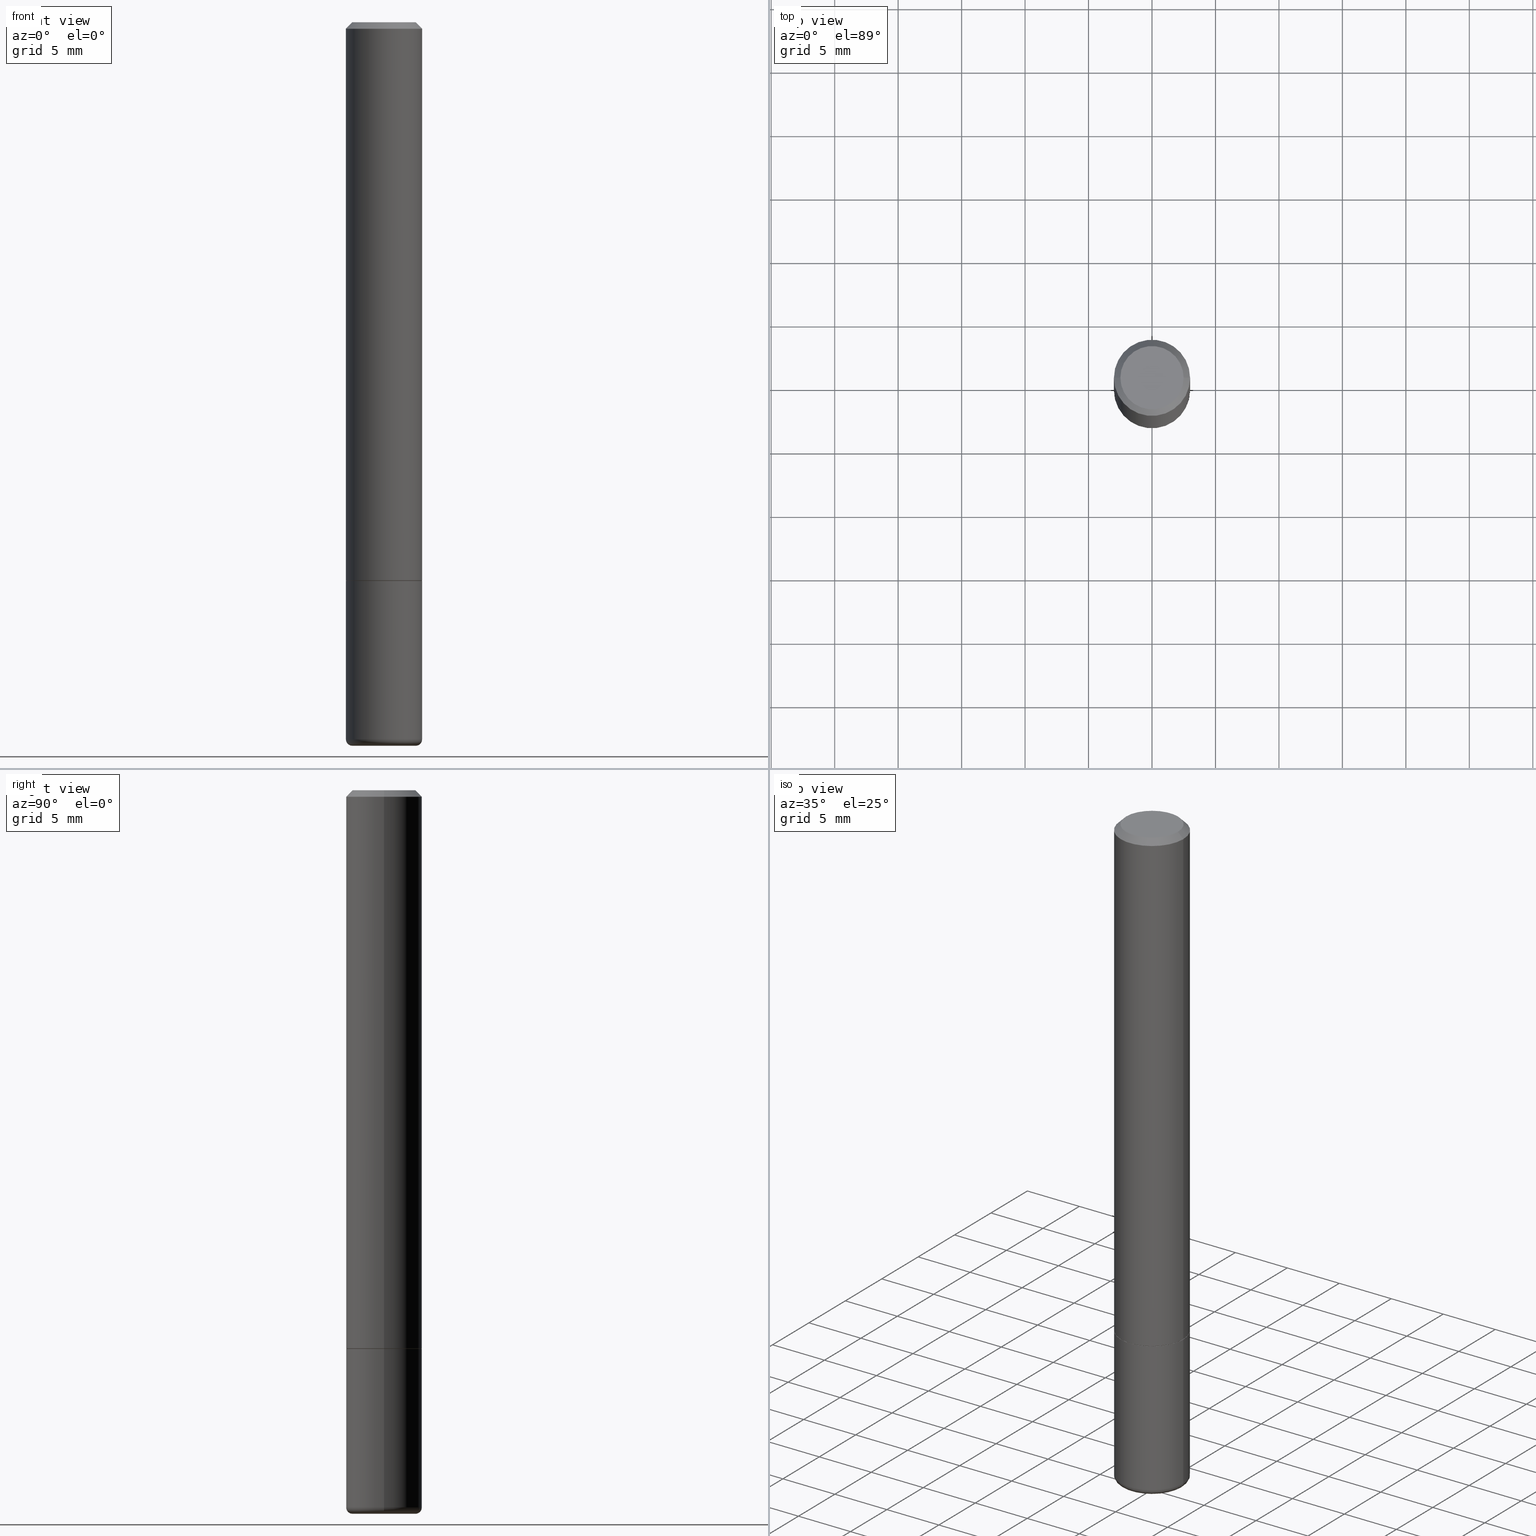
[diagram: canonical four-view strip — front | top / right | iso, engineering-drawing reading convention]
A machine part, canonical four-view strip (front | top / right | iso — engineering-drawing reading convention). The complete STEP part file that produces these views, byte-faithful:
ISO-10303-21;
HEADER;
FILE_DESCRIPTION (( 'STEP AP203' ),
    '1' );
FILE_NAME ('47002.STEP',
    '2024-03-05T10:00:59',
    ( '' ),
    ( '' ),
    'SwSTEP 2.0',
    'SolidWorks 2023',
    '' );
FILE_SCHEMA (( 'CONFIG_CONTROL_DESIGN' ));
ENDSEC;

DATA;
#1 = CARTESIAN_POINT ( 'NONE',  ( -0.1180999999999999411, -6.927300119190015324E-15, -2.224399999999999711 ) ) ;
#2 = EDGE_CURVE ( 'NONE', #64, #383, #325, .T. ) ;
#3 = PERSON_AND_ORGANIZATION ( #297, #409 ) ;
#4 = DIRECTION ( 'NONE',  ( -2.445468806185136597E-29, 3.491481338843145583E-15, 1.000000000000000000 ) ) ;
#5 = AXIS2_PLACEMENT_3D ( 'NONE', #230, #4, #72 ) ;
#6 = ADVANCED_FACE ( 'NONE', ( #299 ), #101, .T. ) ;
#7 = DIRECTION ( 'NONE',  ( -2.445468806185136597E-29, 3.491481338843145583E-15, 1.000000000000000000 ) ) ;
#8 = AXIS2_PLACEMENT_3D ( 'NONE', #53, #255, #158 ) ;
#9 = AXIS2_PLACEMENT_3D ( 'NONE', #137, #69, #324 ) ;
#10 = LINE ( 'NONE', #180, #96 ) ;
#11 = EDGE_CURVE ( 'NONE', #383, #64, #248, .T. ) ;
#12 = ORIENTED_EDGE ( 'NONE', *, *, #195, .T. ) ;
#13 = ORIENTED_EDGE ( 'NONE', *, *, #296, .F. ) ;
#14 = ORIENTED_EDGE ( 'NONE', *, *, #147, .F. ) ;
#15 = CONICAL_SURFACE ( 'NONE', #398, 0.1181000000000000383, 0.7853981633974461696 ) ;
#16 = ORIENTED_EDGE ( 'NONE', *, *, #373, .F. ) ;
#17 = VERTEX_POINT ( 'NONE', #350 ) ;
#18 = ORIENTED_EDGE ( 'NONE', *, *, #2, .T. ) ;
#19 = DATE_AND_TIME ( #417, #304 ) ;
#20 = CARTESIAN_POINT ( 'NONE',  ( 5.439700812478218014E-29, -7.766451090122692732E-15, -2.224399999999999711 ) ) ;
#21 = PRODUCT ( '47002', '47002', '', ( #138 ) ) ;
#22 = CARTESIAN_POINT ( 'NONE',  ( 9.838418477912259158E-29, -1.605009611337359141E-15, -2.244099999999999540 ) ) ;
#23 = PERSON_AND_ORGANIZATION ( #297, #409 ) ;
#24 = CIRCLE ( 'NONE', #330, 0.1181000000000002048 ) ;
#25 = DIRECTION ( 'NONE',  ( 1.000000000000000000, -6.982962677686266711E-15, 4.876176775795935793E-29 ) ) ;
#26 = CARTESIAN_POINT ( 'NONE',  ( 0.1170999999999999958, -6.865998052835041749E-15, -1.732299999999999729 ) ) ;
#27 = EDGE_CURVE ( 'NONE', #378, #153, #32, .T. ) ;
#28 = DIRECTION ( 'NONE',  ( -2.438088387897960049E-29, 3.491481338843145188E-15, 1.000000000000000000 ) ) ;
#29 = DIRECTION ( 'NONE',  ( -2.445468806185136597E-29, 3.491481338843145583E-15, 1.000000000000000000 ) ) ;
#30 = CYLINDRICAL_SURFACE ( 'NONE', #59, 0.1181000000000001215 ) ;
#31 = CARTESIAN_POINT ( 'NONE',  ( -0.1181000000000001215, 8.391509709326791832E-16, -5.809262341591049389E-30 ) ) ;
#32 = CIRCLE ( 'NONE', #8, 0.1180999999999999966 ) ;
#33 = CIRCLE ( 'NONE', #303, 0.1180999999999999966 ) ;
#34 = CARTESIAN_POINT ( 'NONE',  ( 5.487876547960064752E-29, -7.835233272497900762E-15, -2.244099999999999540 ) ) ;
#35 = PERSON_AND_ORGANIZATION_ROLE ( 'design_owner' ) ;
#36 = AXIS2_PLACEMENT_3D ( 'NONE', #262, #390, #228 ) ;
#37 = APPROVAL_PERSON_ORGANIZATION ( #246, #302, #58 ) ;
#38 = CC_DESIGN_PERSON_AND_ORGANIZATION_ASSIGNMENT ( #165, #122, ( #336 ) ) ;
#39 = DIRECTION ( 'NONE',  ( 2.438088387897960049E-29, -3.491481338843145188E-15, -1.000000000000000000 ) ) ;
#40 = EDGE_CURVE ( 'NONE', #239, #210, #200, .T. ) ;
#41 = AXIS2_PLACEMENT_3D ( 'NONE', #387, #189, #357 ) ;
#42 = CONICAL_SURFACE ( 'NONE', #74, 0.1170999999999999958, 0.7853981633976532262 ) ;
#43 = AXIS2_PLACEMENT_3D ( 'NONE', #162, #381, #221 ) ;
#44 = EDGE_LOOP ( 'NONE', ( #300, #216, #271, #181 ) ) ;
#45 = ORIENTED_EDGE ( 'NONE', *, *, #342, .F. ) ;
#46 = EDGE_LOOP ( 'NONE', ( #124, #14 ) ) ;
#47 = ADVANCED_FACE ( 'NONE', ( #199 ), #318, .T. ) ;
#48 = AXIS2_PLACEMENT_3D ( 'NONE', #155, #277, #404 ) ;
#49 = AXIS2_PLACEMENT_3D ( 'NONE', #284, #418, #25 ) ;
#50 = CARTESIAN_POINT ( 'NONE',  ( 4.233840144148326789E-29, -6.044801641939137282E-15, -1.731299999999999839 ) ) ;
#51 = VERTEX_POINT ( 'NONE', #98 ) ;
#52 = PLANE ( 'NONE',  #85 ) ;
#53 = CARTESIAN_POINT ( 'NONE',  ( 5.439700812478218014E-29, -7.766451090122692732E-15, -2.224399999999999711 ) ) ;
#54 = ORIENTED_EDGE ( 'NONE', *, *, #207, .T. ) ;
#55 = CARTESIAN_POINT ( 'NONE',  ( 0.1181000000000001215, -8.246878922347489529E-16, 5.758764772215006046E-30 ) ) ;
#56 = ADVANCED_FACE ( 'NONE', ( #252 ), #42, .T. ) ;
#57 = CARTESIAN_POINT ( 'NONE',  ( 4.890937612370288923E-31, -6.982962677686312563E-17, -0.02000000000000006287 ) ) ;
#58 = APPROVAL_ROLE ( '' ) ;
#59 = AXIS2_PLACEMENT_3D ( 'NONE', #166, #222, #285 ) ;
#60 = CARTESIAN_POINT ( 'NONE',  ( -0.09840000000000000135, -7.031679669849990177E-15, -2.244099999999999540 ) ) ;
#61 = LOCAL_TIME ( 5, 0, 59.00000000000000000, #99 ) ;
#62 = PRODUCT_RELATED_PRODUCT_CATEGORY ( 'detail', '', ( #21 ) ) ;
#63 = CARTESIAN_POINT ( 'NONE',  ( 4.890937612370288923E-31, -6.982962677686312563E-17, -0.02000000000000006287 ) ) ;
#64 = VERTEX_POINT ( 'NONE', #347 ) ;
#65 = DIRECTION ( 'NONE',  ( 1.000000000000000000, -6.982962677686265133E-15, 0.000000000000000000 ) ) ;
#66 = DIRECTION ( 'NONE',  ( -1.000000000000000000, 6.982962677686266711E-15, 0.000000000000000000 ) ) ;
#67 = EDGE_CURVE ( 'NONE', #239, #208, #92, .T. ) ;
#68 = FACE_OUTER_BOUND ( 'NONE', #341, .T. ) ;
#69 = DIRECTION ( 'NONE',  ( -2.445468806185136597E-29, 3.491481338843145583E-15, 1.000000000000000000 ) ) ;
#70 = AXIS2_PLACEMENT_3D ( 'NONE', #123, #348, #376 ) ;
#71 = PRODUCT_DEFINITION_FORMATION_WITH_SPECIFIED_SOURCE ( 'ANY', '', #21, .NOT_KNOWN. ) ;
#72 = DIRECTION ( 'NONE',  ( 1.000000000000000000, -6.982962677686270655E-15, 4.883557194083114583E-29 ) ) ;
#73 = ADVANCED_FACE ( 'NONE', ( #163 ), #171, .T. ) ;
#74 = AXIS2_PLACEMENT_3D ( 'NONE', #130, #410, #380 ) ;
#75 = CC_DESIGN_APPROVAL ( #302, ( #71 ) ) ;
#76 = MANIFOLD_SOLID_BREP ( 'Body-Move/Copy2[2]', #149 ) ;
#77 = EDGE_LOOP ( 'NONE', ( #80, #367, #338, #146 ) ) ;
#78 = CIRCLE ( 'NONE', #364, 0.1170999999999999958 ) ;
#79 = MANIFOLD_SOLID_BREP ( 'Body-Move/Copy2[1]', #234 ) ;
#80 = ORIENTED_EDGE ( 'NONE', *, *, #322, .T. ) ;
#81 = CARTESIAN_POINT ( 'NONE',  ( 0.09840000000000000135, -8.453574617607021781E-15, -2.224399999999999711 ) ) ;
#82 = EDGE_CURVE ( 'NONE', #17, #275, #259, .T. ) ;
#83 = ORIENTED_EDGE ( 'NONE', *, *, #229, .T. ) ;
#84 = ORIENTED_EDGE ( 'NONE', *, *, #354, .F. ) ;
#85 = AXIS2_PLACEMENT_3D ( 'NONE', #389, #28, #323 ) ;
#86 = PERSON_AND_ORGANIZATION_ROLE ( 'classification_officer' ) ;
#87 = CARTESIAN_POINT ( 'NONE',  ( 0.09809999999999970133, -7.765346469475326737E-16, 3.542865366783392114E-16 ) ) ;
#88 = ORIENTED_EDGE ( 'NONE', *, *, #27, .T. ) ;
#89 = EDGE_LOOP ( 'NONE', ( #84, #308, #278, #241 ) ) ;
#90 = ADVANCED_FACE ( 'NONE', ( #382 ), #15, .T. ) ;
#91 = DIRECTION ( 'NONE',  ( 1.000000000000000000, -6.982962677686266711E-15, 4.884890577880263287E-29 ) ) ;
#92 = LINE ( 'NONE', #220, #126 ) ;
#93 = APPROVAL ( #250, 'UNSPECIFIED' ) ;
#94 = DIRECTION ( 'NONE',  ( -2.445468806185136597E-29, 3.491481338843145583E-15, 1.000000000000000000 ) ) ;
#95 = DIRECTION ( 'NONE',  ( 2.445468806185136597E-29, -3.491481338843145583E-15, -1.000000000000000000 ) ) ;
#96 = VECTOR ( 'NONE', #395, 39.37007874015748143 ) ;
#97 = DIRECTION ( 'NONE',  ( -2.445468806185136877E-29, 3.491481338843145188E-15, 1.000000000000000000 ) ) ;
#98 = CARTESIAN_POINT ( 'NONE',  ( 0.09840000000000000135, -8.522356799982231388E-15, -2.244099999999999540 ) ) ;
#99 = COORDINATED_UNIVERSAL_TIME_OFFSET ( 5, 0, .BEHIND. ) ;
#100 =( NAMED_UNIT ( * ) PLANE_ANGLE_UNIT ( ) SI_UNIT ( $, .RADIAN. ) );
#101 = PLANE ( 'NONE',  #142 ) ;
#102 = DIRECTION ( 'NONE',  ( 1.000000000000000000, -6.982962677686266711E-15, 4.876176775795936353E-29 ) ) ;
#103 = SHAPE_DEFINITION_REPRESENTATION ( #186, #359 ) ;
#104 = DIRECTION ( 'NONE',  ( 0.000000000000000000, 0.000000000000000000, 1.000000000000000000 ) ) ;
#105 = UNCERTAINTY_MEASURE_WITH_UNIT (LENGTH_MEASURE( 1.000000000000000082E-05 ), #257, 'distance_accuracy_value', 'NONE');
#106 = AXIS2_PLACEMENT_3D ( 'NONE', #81, #178, #148 ) ;
#107 = EDGE_CURVE ( 'NONE', #210, #344, #416, .T. ) ;
#108 = PLANE ( 'NONE',  #110 ) ;
#109 = FACE_OUTER_BOUND ( 'NONE', #134, .T. ) ;
#110 = AXIS2_PLACEMENT_3D ( 'NONE', #295, #39, #203 ) ;
#111 = ADVANCED_FACE ( 'NONE', ( #321 ), #30, .T. ) ;
#112 = LINE ( 'NONE', #211, #135 ) ;
#113 = ORIENTED_EDGE ( 'NONE', *, *, #329, .F. ) ;
#114 = DIRECTION ( 'NONE',  ( -2.445468806185136597E-29, 3.491481338843145583E-15, 1.000000000000000000 ) ) ;
#115 = ORIENTED_EDGE ( 'NONE', *, *, #393, .T. ) ;
#116 = CIRCLE ( 'NONE', #349, 0.09840000000000000135 ) ;
#117 = LOCAL_TIME ( 5, 0, 59.00000000000000000, #156 ) ;
#118 = ADVANCED_FACE ( 'NONE', ( #289 ), #223, .T. ) ;
#119 = ORIENTED_EDGE ( 'NONE', *, *, #107, .F. ) ;
#120 = CARTESIAN_POINT ( 'NONE',  ( -0.1181000000000002048, -2.218164663425318543E-15, -1.731299999999999839 ) ) ;
#121 = EDGE_LOOP ( 'NONE', ( #401, #345, #399, #18 ) ) ;
#122 = PERSON_AND_ORGANIZATION_ROLE ( 'creator' ) ;
#123 = CARTESIAN_POINT ( 'NONE',  ( -0.09840000000000000135, -7.067277038134754633E-15, -2.224399999999999711 ) ) ;
#124 = ORIENTED_EDGE ( 'NONE', *, *, #322, .F. ) ;
#125 = EDGE_CURVE ( 'NONE', #208, #344, #151, .T. ) ;
#126 = VECTOR ( 'NONE', #193, 39.37007874015748854 ) ;
#127 = FACE_OUTER_BOUND ( 'NONE', #145, .T. ) ;
#128 = CARTESIAN_POINT ( 'NONE',  ( 0.000000000000000000, 0.000000000000000000, 0.000000000000000000 ) ) ;
#129 = DIRECTION ( 'NONE',  ( -2.445468806185136877E-29, 3.491481338843145188E-15, 1.000000000000000000 ) ) ;
#130 = CARTESIAN_POINT ( 'NONE',  ( 4.236285612954511832E-29, -6.048293123277980289E-15, -1.732299999999999729 ) ) ;
#131 = ORIENTED_EDGE ( 'NONE', *, *, #283, .F. ) ;
#132 =( LENGTH_UNIT ( ) NAMED_UNIT ( * ) SI_UNIT ( $, .METRE. ) );
#133 = DIRECTION ( 'NONE',  ( 2.438088387897960049E-29, -3.491481338843145188E-15, -1.000000000000000000 ) ) ;
#134 = EDGE_LOOP ( 'NONE', ( #88, #175, #217, #16 ) ) ;
#135 = VECTOR ( 'NONE', #339, 39.37007874015748143 ) ;
#136 = CC_DESIGN_PERSON_AND_ORGANIZATION_ASSIGNMENT ( #23, #86, ( #183 ) ) ;
#137 = CARTESIAN_POINT ( 'NONE',  ( 4.233840144148326789E-29, -6.044801641939137282E-15, -1.731299999999999839 ) ) ;
#138 = MECHANICAL_CONTEXT ( 'NONE', #144, 'mechanical' ) ;
#139 = FACE_OUTER_BOUND ( 'NONE', #397, .T. ) ;
#140 = APPROVAL_STATUS ( 'not_yet_approved' ) ;
#141 = VECTOR ( 'NONE', #310, 39.37007874015748143 ) ;
#142 = AXIS2_PLACEMENT_3D ( 'NONE', #22, #133, #311 ) ;
#143 = VECTOR ( 'NONE', #286, 39.37007874015748143 ) ;
#144 = APPLICATION_CONTEXT ( 'configuration controlled 3d designs of mechanical parts and assemblies' ) ;
#145 = EDGE_LOOP ( 'NONE', ( #249, #187 ) ) ;
#146 = ORIENTED_EDGE ( 'NONE', *, *, #207, .F. ) ;
#147 = EDGE_CURVE ( 'NONE', #405, #51, #116, .T. ) ;
#148 = DIRECTION ( 'NONE',  ( 1.000000000000000000, -6.982962677686266711E-15, 0.000000000000000000 ) ) ;
#149 = CLOSED_SHELL ( 'NONE', ( #56, #111, #73, #90, #263, #274, #332, #400 ) ) ;
#150 = ORIENTED_EDGE ( 'NONE', *, *, #67, .F. ) ;
#151 = CIRCLE ( 'NONE', #9, 0.1181000000000002048 ) ;
#152 = CC_DESIGN_APPROVAL ( #267, ( #336 ) ) ;
#153 = VERTEX_POINT ( 'NONE', #1 ) ;
#154 = PERSON_AND_ORGANIZATION_ROLE ( 'creator' ) ;
#155 = CARTESIAN_POINT ( 'NONE',  ( 4.890937612370288923E-31, -6.982962677686312563E-17, -0.02000000000000006287 ) ) ;
#156 = COORDINATED_UNIVERSAL_TIME_OFFSET ( 5, 0, .BEHIND. ) ;
#157 = CYLINDRICAL_SURFACE ( 'NONE', #49, 0.1181000000000001215 ) ;
#158 = DIRECTION ( 'NONE',  ( 1.000000000000000000, -6.982962677686265133E-15, 0.000000000000000000 ) ) ;
#159 = CC_DESIGN_SECURITY_CLASSIFICATION ( #183, ( #71 ) ) ;
#160 = DIRECTION ( 'NONE',  ( -2.445468806185136597E-29, 3.491481338843145583E-15, 1.000000000000000000 ) ) ;
#161 = DIRECTION ( 'NONE',  ( 0.7071067811866923458, -2.468850131083773646E-15, 0.7071067811864025776 ) ) ;
#162 = CARTESIAN_POINT ( 'NONE',  ( 6.850286386810205815E-16, 0.09809999999999970133, -1.653710510013444322E-16 ) ) ;
#163 = FACE_OUTER_BOUND ( 'NONE', #370, .T. ) ;
#164 = CC_DESIGN_PERSON_AND_ORGANIZATION_ASSIGNMENT ( #402, #227, ( #71 ) ) ;
#165 = PERSON_AND_ORGANIZATION ( #297, #409 ) ;
#166 = CARTESIAN_POINT ( 'NONE',  ( 0.000000000000000000, 0.000000000000000000, 0.000000000000000000 ) ) ;
#167 = CIRCLE ( 'NONE', #266, 0.09809999999999970133 ) ;
#168 = DIRECTION ( 'NONE',  ( -2.445468806185136597E-29, 3.491481338843145583E-15, 1.000000000000000000 ) ) ;
#169 = DIRECTION ( 'NONE',  ( -2.445468806185136597E-29, 3.491481338843145583E-15, 1.000000000000000000 ) ) ;
#170 = ADVANCED_FACE ( 'NONE', ( #139 ), #375, .T. ) ;
#171 = CONICAL_SURFACE ( 'NONE', #290, 0.1181000000000000383, 0.7853981633974461696 ) ;
#172 = APPLICATION_CONTEXT ( 'configuration controlled 3d designs of mechanical parts and assemblies' ) ;
#173 = CARTESIAN_POINT ( 'NONE',  ( 0.000000000000000000, 0.000000000000000000, 0.000000000000000000 ) ) ;
#174 = AXIS2_PLACEMENT_3D ( 'NONE', #334, #197, #352 ) ;
#175 = ORIENTED_EDGE ( 'NONE', *, *, #354, .T. ) ;
#176 = ADVANCED_FACE ( 'NONE', ( #391 ), #108, .F. ) ;
#177 = ORIENTED_EDGE ( 'NONE', *, *, #125, .F. ) ;
#178 = DIRECTION ( 'NONE',  ( -6.982962677686266711E-15, -1.000000000000000000, 3.491481338843145583E-15 ) ) ;
#179 = ORIENTED_EDGE ( 'NONE', *, *, #40, .T. ) ;
#180 = CARTESIAN_POINT ( 'NONE',  ( -0.1181000000000000383, 7.548582654578852602E-16, -0.02000000000000006287 ) ) ;
#181 = ORIENTED_EDGE ( 'NONE', *, *, #2, .F. ) ;
#182 = CIRCLE ( 'NONE', #174, 0.09809999999999970133 ) ;
#183 = SECURITY_CLASSIFICATION ( '', '', #288 ) ;
#184 = DATE_AND_TIME ( #316, #61 ) ;
#185 = DIRECTION ( 'NONE',  ( 1.000000000000000000, -6.982962677686268288E-15, 0.000000000000000000 ) ) ;
#186 = PRODUCT_DEFINITION_SHAPE ( 'NONE', 'NONE',  #336 ) ;
#187 = ORIENTED_EDGE ( 'NONE', *, *, #40, .F. ) ;
#188 = CARTESIAN_POINT ( 'NONE',  ( -0.1180999999999999966, 8.391509709326782957E-16, -5.809262341591043784E-30 ) ) ;
#189 = DIRECTION ( 'NONE',  ( -2.445468806185136597E-29, 3.491481338843145583E-15, 1.000000000000000000 ) ) ;
#190 = ORIENTED_EDGE ( 'NONE', *, *, #237, .F. ) ;
#191 = DATE_AND_TIME ( #232, #331 ) ;
#192 = LINE ( 'NONE', #31, #377 ) ;
#193 = DIRECTION ( 'NONE',  ( -0.7071067811866923458, 7.493145998870876386E-15, 0.7071067811864025776 ) ) ;
#194 = AXIS2_PLACEMENT_3D ( 'NONE', #128, #281, #102 ) ;
#195 = EDGE_CURVE ( 'NONE', #275, #17, #33, .T. ) ;
#196 = ORIENTED_EDGE ( 'NONE', *, *, #107, .T. ) ;
#197 = DIRECTION ( 'NONE',  ( -2.445468806185136597E-29, 3.491481338843145583E-15, 1.000000000000000000 ) ) ;
#198 = DIRECTION ( 'NONE',  ( -1.000000000000000000, 6.982962677686266711E-15, 0.000000000000000000 ) ) ;
#199 = FACE_OUTER_BOUND ( 'NONE', #89, .T. ) ;
#200 = CIRCLE ( 'NONE', #41, 0.1170999999999999958 ) ;
#201 = AXIS2_PLACEMENT_3D ( 'NONE', #226, #353, #287 ) ;
#202 = ADVANCED_FACE ( 'NONE', ( #109 ), #235, .T. ) ;
#203 = DIRECTION ( 'NONE',  ( -1.000000000000000000, 6.982962677686265922E-15, -4.876176775795935793E-29 ) ) ;
#204 = LOCAL_TIME ( 5, 0, 59.00000000000000000, #218 ) ;
#205 = APPLICATION_PROTOCOL_DEFINITION ( 'international standard', 'config_control_design', 1994, #144 ) ;
#206 = EDGE_CURVE ( 'NONE', #273, #64, #10, .T. ) ;
#207 = EDGE_CURVE ( 'NONE', #51, #378, #358, .T. ) ;
#208 = VERTEX_POINT ( 'NONE', #120 ) ;
#209 = ORIENTED_EDGE ( 'NONE', *, *, #82, .T. ) ;
#210 = VERTEX_POINT ( 'NONE', #403 ) ;
#211 = CARTESIAN_POINT ( 'NONE',  ( 0.1181000000000000383, -8.800544403136812319E-16, -0.02000000000000006287 ) ) ;
#212 = AXIS2_PLACEMENT_3D ( 'NONE', #63, #29, #258 ) ;
#213 = ORIENTED_EDGE ( 'NONE', *, *, #296, .T. ) ;
#214 = AXIS2_PLACEMENT_3D ( 'NONE', #219, #160, #215 ) ;
#215 = DIRECTION ( 'NONE',  ( 1.000000000000000000, -6.982962677686271444E-15, 0.000000000000000000 ) ) ;
#216 = ORIENTED_EDGE ( 'NONE', *, *, #125, .T. ) ;
#217 = ORIENTED_EDGE ( 'NONE', *, *, #195, .F. ) ;
#218 = COORDINATED_UNIVERSAL_TIME_OFFSET ( 5, 0, .BEHIND. ) ;
#219 = CARTESIAN_POINT ( 'NONE',  ( 5.487876547960064752E-29, -7.835233272497900762E-15, -2.244099999999999540 ) ) ;
#220 = CARTESIAN_POINT ( 'NONE',  ( -0.1170999999999999958, -5.216247579702903100E-15, -1.732299999999999729 ) ) ;
#221 = DIRECTION ( 'NONE',  ( -1.000000000000000000, 6.982962677686265922E-15, -4.876176775795935793E-29 ) ) ;
#222 = DIRECTION ( 'NONE',  ( -2.445468806185136597E-29, 3.491481338843145583E-15, 1.000000000000000000 ) ) ;
#223 = TOROIDAL_SURFACE ( 'NONE', #36, 0.09840000000000000135, 0.01969999999999989468 ) ;
#224 = DATE_AND_TIME ( #411, #204 ) ;
#225 = FACE_OUTER_BOUND ( 'NONE', #272, .T. ) ;
#226 = CARTESIAN_POINT ( 'NONE',  ( 4.236285612954512392E-29, -6.048293123277981078E-15, -1.732299999999999951 ) ) ;
#227 = PERSON_AND_ORGANIZATION_ROLE ( 'design_supplier' ) ;
#228 = DIRECTION ( 'NONE',  ( 1.000000000000000000, -6.982962677686270655E-15, 4.883557194083114583E-29 ) ) ;
#229 = EDGE_CURVE ( 'NONE', #307, #383, #112, .T. ) ;
#230 = CARTESIAN_POINT ( 'NONE',  ( 5.439700812478218014E-29, -7.766451090122692732E-15, -2.224399999999999711 ) ) ;
#231 = APPROVAL_PERSON_ORGANIZATION ( #3, #267, #265 ) ;
#232 = CALENDAR_DATE ( 2024, 5, 3 ) ;
#233 = CC_DESIGN_PERSON_AND_ORGANIZATION_ASSIGNMENT ( #406, #154, ( #71 ) ) ;
#234 = CLOSED_SHELL ( 'NONE', ( #202, #118, #176, #47, #170, #6 ) ) ;
#235 = CYLINDRICAL_SURFACE ( 'NONE', #240, 0.1180999999999999966 ) ;
#236 = CARTESIAN_POINT ( 'NONE',  ( -0.1170999999999999958, -5.210949125354681487E-15, -1.732299999999999729 ) ) ;
#237 = EDGE_CURVE ( 'NONE', #344, #208, #24, .T. ) ;
#238 = CARTESIAN_POINT ( 'NONE',  ( 4.236285612954511832E-29, -6.048293123277980289E-15, -1.732299999999999729 ) ) ;
#239 = VERTEX_POINT ( 'NONE', #236 ) ;
#240 = AXIS2_PLACEMENT_3D ( 'NONE', #173, #270, #243 ) ;
#241 = ORIENTED_EDGE ( 'NONE', *, *, #82, .F. ) ;
#242 = EDGE_LOOP ( 'NONE', ( #301, #115, #388, #45 ) ) ;
#243 = DIRECTION ( 'NONE',  ( 1.000000000000000000, -6.982962677686266711E-15, 4.876176775795936353E-29 ) ) ;
#244 = EDGE_CURVE ( 'NONE', #210, #239, #78, .T. ) ;
#245 = EDGE_LOOP ( 'NONE', ( #372, #335, #190, #119 ) ) ;
#246 = PERSON_AND_ORGANIZATION ( #297, #409 ) ;
#247 = DIRECTION ( 'NONE',  ( -2.445468806185136597E-29, 3.491481338843145583E-15, 1.000000000000000000 ) ) ;
#248 = CIRCLE ( 'NONE', #212, 0.1181000000000000383 ) ;
#249 = ORIENTED_EDGE ( 'NONE', *, *, #244, .F. ) ;
#250 = APPROVAL_STATUS ( 'not_yet_approved' ) ;
#251 = CARTESIAN_POINT ( 'NONE',  ( 0.1180999999999999411, -8.591138982357440995E-15, -2.224399999999999711 ) ) ;
#252 = FACE_OUTER_BOUND ( 'NONE', #245, .T. ) ;
#253 = EDGE_CURVE ( 'NONE', #273, #307, #182, .T. ) ;
#254 = CARTESIAN_POINT ( 'NONE',  ( 0.1180999999999999966, -8.246878922347480654E-16, 5.758764772215000440E-30 ) ) ;
#255 = DIRECTION ( 'NONE',  ( -2.445468806185136597E-29, 3.491481338843145583E-15, 1.000000000000000000 ) ) ;
#256 = DATE_TIME_ROLE ( 'classification_date' ) ;
#257 =( CONVERSION_BASED_UNIT ( 'INCH', #356 ) LENGTH_UNIT ( ) NAMED_UNIT ( #363 ) );
#258 = DIRECTION ( 'NONE',  ( 1.000000000000000000, -6.982962677686266711E-15, 0.000000000000000000 ) ) ;
#259 = CIRCLE ( 'NONE', #201, 0.1180999999999999966 ) ;
#260 = CC_DESIGN_APPROVAL ( #93, ( #183 ) ) ;
#261 = CARTESIAN_POINT ( 'NONE',  ( -0.09809999999999970133, 7.199434520694536111E-16, 3.542865366783292027E-16 ) ) ;
#262 = CARTESIAN_POINT ( 'NONE',  ( 5.439700812478218014E-29, -7.766451090122692732E-15, -2.224399999999999711 ) ) ;
#263 = ADVANCED_FACE ( 'NONE', ( #291 ), #157, .T. ) ;
#264 = CARTESIAN_POINT ( 'NONE',  ( 0.000000000000000000, 0.000000000000000000, 0.000000000000000000 ) ) ;
#265 = APPROVAL_ROLE ( '' ) ;
#266 = AXIS2_PLACEMENT_3D ( 'NONE', #412, #247, #91 ) ;
#267 = APPROVAL ( #140, 'UNSPECIFIED' ) ;
#268 = DIRECTION ( 'NONE',  ( 1.000000000000000000, -6.982962677686265133E-15, 0.000000000000000000 ) ) ;
#269 = AXIS2_PLACEMENT_3D ( 'NONE', #20, #94, #65 ) ;
#270 = DIRECTION ( 'NONE',  ( -2.445468806185136597E-29, 3.491481338843145583E-15, 1.000000000000000000 ) ) ;
#271 = ORIENTED_EDGE ( 'NONE', *, *, #342, .T. ) ;
#272 = EDGE_LOOP ( 'NONE', ( #150, #179, #196, #177 ) ) ;
#273 = VERTEX_POINT ( 'NONE', #261 ) ;
#274 = ADVANCED_FACE ( 'NONE', ( #225 ), #407, .T. ) ;
#275 = VERTEX_POINT ( 'NONE', #408 ) ;
#276 = APPROVAL_DATE_TIME ( #306, #302 ) ;
#277 = DIRECTION ( 'NONE',  ( -2.445468806185136597E-29, 3.491481338843145583E-15, 1.000000000000000000 ) ) ;
#278 = ORIENTED_EDGE ( 'NONE', *, *, #373, .T. ) ;
#279 = CALENDAR_DATE ( 2024, 5, 3 ) ;
#280 = LINE ( 'NONE', #188, #141 ) ;
#281 = DIRECTION ( 'NONE',  ( -2.445468806185136597E-29, 3.491481338843145583E-15, 1.000000000000000000 ) ) ;
#282 = AXIS2_PLACEMENT_3D ( 'NONE', #264, #104, #360 ) ;
#283 = EDGE_CURVE ( 'NONE', #405, #153, #333, .T. ) ;
#284 = CARTESIAN_POINT ( 'NONE',  ( 0.000000000000000000, 0.000000000000000000, 0.000000000000000000 ) ) ;
#285 = DIRECTION ( 'NONE',  ( 1.000000000000000000, -6.982962677686266711E-15, 4.876176775795935793E-29 ) ) ;
#286 = DIRECTION ( 'NONE',  ( -2.445468806185136877E-29, 3.491481338843145188E-15, 1.000000000000000000 ) ) ;
#287 = DIRECTION ( 'NONE',  ( 1.000000000000000000, -6.982962677686265133E-15, 0.000000000000000000 ) ) ;
#288 = SECURITY_CLASSIFICATION_LEVEL ( 'unclassified' ) ;
#289 = FACE_OUTER_BOUND ( 'NONE', #77, .T. ) ;
#290 = AXIS2_PLACEMENT_3D ( 'NONE', #57, #413, #66 ) ;
#291 = FACE_OUTER_BOUND ( 'NONE', #44, .T. ) ;
#292 = DIRECTION ( 'NONE',  ( 1.000000000000000000, -6.982962677686271444E-15, 0.000000000000000000 ) ) ;
#293 = APPLICATION_PROTOCOL_DEFINITION ( 'international standard', 'config_control_design', 1994, #172 ) ;
#294 =( NAMED_UNIT ( * ) SI_UNIT ( $, .STERADIAN. ) SOLID_ANGLE_UNIT ( ) );
#295 = CARTESIAN_POINT ( 'NONE',  ( 4.236285612954512392E-29, -6.048293123277981078E-15, -1.732299999999999951 ) ) ;
#296 = EDGE_CURVE ( 'NONE', #307, #273, #167, .T. ) ;
#297 = PERSON ( 'UNSPECIFIED', 'UNSPECIFIED', 'UNSPECIFIED', ('UNSPECIFIED'), ('UNSPECIFIED'), ('UNSPECIFIED') ) ;
#298 = CIRCLE ( 'NONE', #269, 0.1180999999999999966 ) ;
#299 = FACE_OUTER_BOUND ( 'NONE', #46, .T. ) ;
#300 = ORIENTED_EDGE ( 'NONE', *, *, #393, .F. ) ;
#301 = ORIENTED_EDGE ( 'NONE', *, *, #237, .T. ) ;
#302 = APPROVAL ( #415, 'UNSPECIFIED' ) ;
#303 = AXIS2_PLACEMENT_3D ( 'NONE', #362, #7, #268 ) ;
#304 = LOCAL_TIME ( 5, 0, 59.00000000000000000, #309 ) ;
#305 = ORIENTED_EDGE ( 'NONE', *, *, #11, .T. ) ;
#306 = DATE_AND_TIME ( #279, #117 ) ;
#307 = VERTEX_POINT ( 'NONE', #87 ) ;
#308 = ORIENTED_EDGE ( 'NONE', *, *, #329, .T. ) ;
#309 = COORDINATED_UNIVERSAL_TIME_OFFSET ( 5, 0, .BEHIND. ) ;
#310 = DIRECTION ( 'NONE',  ( -2.445468806185136877E-29, 3.491481338843145188E-15, 1.000000000000000000 ) ) ;
#311 = DIRECTION ( 'NONE',  ( -1.000000000000000000, 6.982962677686265922E-15, -4.876176775795935793E-29 ) ) ;
#312 = PLANE ( 'NONE',  #43 ) ;
#313 = CIRCLE ( 'NONE', #214, 0.09840000000000000135 ) ;
#314 = CARTESIAN_POINT ( 'NONE',  ( 4.890937612370288923E-31, -6.982962677686312563E-17, -0.02000000000000006287 ) ) ;
#315 =( GEOMETRIC_REPRESENTATION_CONTEXT ( 3 ) GLOBAL_UNCERTAINTY_ASSIGNED_CONTEXT ( ( #105 ) ) GLOBAL_UNIT_ASSIGNED_CONTEXT ( ( #257, #100, #294 ) ) REPRESENTATION_CONTEXT ( 'NONE', 'WORKASPACE' ) );
#316 = CALENDAR_DATE ( 2024, 5, 3 ) ;
#317 = DIRECTION ( 'NONE',  ( 1.000000000000000000, -6.982962677686264344E-15, 0.000000000000000000 ) ) ;
#318 = CYLINDRICAL_SURFACE ( 'NONE', #194, 0.1180999999999999966 ) ;
#319 = APPROVAL_DATE_TIME ( #191, #267 ) ;
#320 = CARTESIAN_POINT ( 'NONE',  ( 0.1181000000000002048, -6.869489534173887122E-15, -1.731299999999999839 ) ) ;
#321 = FACE_OUTER_BOUND ( 'NONE', #242, .T. ) ;
#322 = EDGE_CURVE ( 'NONE', #51, #405, #313, .T. ) ;
#323 = DIRECTION ( 'NONE',  ( 1.000000000000000000, -6.982962677686265922E-15, 4.876176775795935793E-29 ) ) ;
#324 = DIRECTION ( 'NONE',  ( 1.000000000000000000, -6.982962677686268288E-15, 0.000000000000000000 ) ) ;
#325 = CIRCLE ( 'NONE', #48, 0.1181000000000000383 ) ;
#326 = VECTOR ( 'NONE', #129, 39.37007874015748143 ) ;
#327 = CC_DESIGN_DATE_AND_TIME_ASSIGNMENT ( #19, #256, ( #183 ) ) ;
#328 = PERSON_AND_ORGANIZATION ( #297, #409 ) ;
#329 = EDGE_CURVE ( 'NONE', #153, #378, #298, .T. ) ;
#330 = AXIS2_PLACEMENT_3D ( 'NONE', #50, #114, #185 ) ;
#331 = LOCAL_TIME ( 5, 0, 59.00000000000000000, #392 ) ;
#332 = ADVANCED_FACE ( 'NONE', ( #127 ), #52, .F. ) ;
#333 = CIRCLE ( 'NONE', #70, 0.01969999999999989468 ) ;
#334 = CARTESIAN_POINT ( 'NONE',  ( -8.663966738982324366E-45, 1.236984831415771234E-30, 3.542865366783341331E-16 ) ) ;
#335 = ORIENTED_EDGE ( 'NONE', *, *, #67, .T. ) ;
#336 = PRODUCT_DEFINITION ( 'UNKNOWN', '', #71, #361 ) ;
#337 = EDGE_LOOP ( 'NONE', ( #12, #209 ) ) ;
#338 = ORIENTED_EDGE ( 'NONE', *, *, #27, .F. ) ;
#339 = DIRECTION ( 'NONE',  ( 0.7071067811865460184, -7.319954787623251312E-15, -0.7071067811865490160 ) ) ;
#340 = ORIENTED_EDGE ( 'NONE', *, *, #206, .F. ) ;
#341 = EDGE_LOOP ( 'NONE', ( #396, #213 ) ) ;
#342 = EDGE_CURVE ( 'NONE', #344, #383, #385, .T. ) ;
#343 = CARTESIAN_POINT ( 'NONE',  ( 4.236285612954511832E-29, -6.048293123277980289E-15, -1.732299999999999729 ) ) ;
#344 = VERTEX_POINT ( 'NONE', #320 ) ;
#345 = ORIENTED_EDGE ( 'NONE', *, *, #253, .F. ) ;
#346 = CARTESIAN_POINT ( 'NONE',  ( 0.1181000000000000383, -8.800544403136812319E-16, -0.02000000000000006287 ) ) ;
#347 = CARTESIAN_POINT ( 'NONE',  ( -0.1181000000000000383, 7.548582654578852602E-16, -0.02000000000000006287 ) ) ;
#348 = DIRECTION ( 'NONE',  ( 7.105427357601001859E-15, 1.000000000000000000, -3.491481338843145583E-15 ) ) ;
#349 = AXIS2_PLACEMENT_3D ( 'NONE', #34, #169, #292 ) ;
#350 = CARTESIAN_POINT ( 'NONE',  ( -0.1180999999999999966, -6.068221135767658314E-15, -1.732299999999999951 ) ) ;
#351 = APPROVAL_DATE_TIME ( #224, #93 ) ;
#352 = DIRECTION ( 'NONE',  ( 1.000000000000000000, -6.982962677686266711E-15, 4.884890577880263287E-29 ) ) ;
#353 = DIRECTION ( 'NONE',  ( -2.445468806185136597E-29, 3.491481338843145583E-15, 1.000000000000000000 ) ) ;
#354 = EDGE_CURVE ( 'NONE', #153, #17, #280, .T. ) ;
#355 = PERSON_AND_ORGANIZATION ( #297, #409 ) ;
#356 = LENGTH_MEASURE_WITH_UNIT ( LENGTH_MEASURE( 0.02539999999999999897 ), #132 );
#357 = DIRECTION ( 'NONE',  ( 1.000000000000000000, -6.982962677686264344E-15, 0.000000000000000000 ) ) ;
#358 = CIRCLE ( 'NONE', #106, 0.01969999999999989468 ) ;
#359 = ADVANCED_BREP_SHAPE_REPRESENTATION ( '47002', ( #79, #76, #282 ), #315 ) ;
#360 = DIRECTION ( 'NONE',  ( 1.000000000000000000, 0.000000000000000000, 0.000000000000000000 ) ) ;
#361 = DESIGN_CONTEXT ( 'detailed design', #172, 'design' ) ;
#362 = CARTESIAN_POINT ( 'NONE',  ( 4.236285612954512392E-29, -6.048293123277981078E-15, -1.732299999999999951 ) ) ;
#363 = DIMENSIONAL_EXPONENTS ( 1.000000000000000000, 0.000000000000000000, 0.000000000000000000, 0.000000000000000000, 0.000000000000000000, 0.000000000000000000, 0.000000000000000000 ) ;
#364 = AXIS2_PLACEMENT_3D ( 'NONE', #238, #365, #366 ) ;
#365 = DIRECTION ( 'NONE',  ( -2.445468806185136597E-29, 3.491481338843145583E-15, 1.000000000000000000 ) ) ;
#366 = DIRECTION ( 'NONE',  ( 1.000000000000000000, -6.982962677686264344E-15, 0.000000000000000000 ) ) ;
#367 = ORIENTED_EDGE ( 'NONE', *, *, #283, .T. ) ;
#368 = VECTOR ( 'NONE', #161, 39.37007874015748854 ) ;
#369 = APPROVAL_PERSON_ORGANIZATION ( #355, #93, #384 ) ;
#370 = EDGE_LOOP ( 'NONE', ( #13, #83, #305, #340 ) ) ;
#371 = ORIENTED_EDGE ( 'NONE', *, *, #147, .T. ) ;
#372 = ORIENTED_EDGE ( 'NONE', *, *, #244, .T. ) ;
#373 = EDGE_CURVE ( 'NONE', #378, #275, #379, .T. ) ;
#374 = DATE_TIME_ROLE ( 'creation_date' ) ;
#375 = TOROIDAL_SURFACE ( 'NONE', #5, 0.09840000000000000135, 0.01969999999999989468 ) ;
#376 = DIRECTION ( 'NONE',  ( -1.000000000000000000, 7.105427357601014480E-15, 0.000000000000000000 ) ) ;
#377 = VECTOR ( 'NONE', #97, 39.37007874015748143 ) ;
#378 = VERTEX_POINT ( 'NONE', #251 ) ;
#379 = LINE ( 'NONE', #254, #143 ) ;
#380 = DIRECTION ( 'NONE',  ( 1.000000000000000000, -6.982962677686264344E-15, 0.000000000000000000 ) ) ;
#381 = DIRECTION ( 'NONE',  ( 2.438088387897960049E-29, -3.491481338843145188E-15, -1.000000000000000000 ) ) ;
#382 = FACE_OUTER_BOUND ( 'NONE', #121, .T. ) ;
#383 = VERTEX_POINT ( 'NONE', #346 ) ;
#384 = APPROVAL_ROLE ( '' ) ;
#385 = LINE ( 'NONE', #55, #326 ) ;
#386 = CC_DESIGN_DATE_AND_TIME_ASSIGNMENT ( #184, #374, ( #336 ) ) ;
#387 = CARTESIAN_POINT ( 'NONE',  ( 4.236285612954511832E-29, -6.048293123277980289E-15, -1.732299999999999729 ) ) ;
#388 = ORIENTED_EDGE ( 'NONE', *, *, #11, .F. ) ;
#389 = CARTESIAN_POINT ( 'NONE',  ( 4.236285612954512392E-29, -6.048293123277981078E-15, -1.732299999999999951 ) ) ;
#390 = DIRECTION ( 'NONE',  ( -2.445468806185136597E-29, 3.491481338843145583E-15, 1.000000000000000000 ) ) ;
#391 = FACE_OUTER_BOUND ( 'NONE', #337, .T. ) ;
#392 = COORDINATED_UNIVERSAL_TIME_OFFSET ( 5, 0, .BEHIND. ) ;
#393 = EDGE_CURVE ( 'NONE', #208, #64, #192, .T. ) ;
#394 = AXIS2_PLACEMENT_3D ( 'NONE', #343, #168, #317 ) ;
#395 = DIRECTION ( 'NONE',  ( -0.7071067811865460184, 2.468850131082241283E-15, -0.7071067811865490160 ) ) ;
#396 = ORIENTED_EDGE ( 'NONE', *, *, #253, .T. ) ;
#397 = EDGE_LOOP ( 'NONE', ( #131, #371, #54, #113 ) ) ;
#398 = AXIS2_PLACEMENT_3D ( 'NONE', #314, #95, #198 ) ;
#399 = ORIENTED_EDGE ( 'NONE', *, *, #206, .T. ) ;
#400 = ADVANCED_FACE ( 'NONE', ( #68 ), #312, .F. ) ;
#401 = ORIENTED_EDGE ( 'NONE', *, *, #229, .F. ) ;
#402 = PERSON_AND_ORGANIZATION ( #297, #409 ) ;
#403 = CARTESIAN_POINT ( 'NONE',  ( 0.1170999999999999958, -6.865998052835041749E-15, -1.732299999999999729 ) ) ;
#404 = DIRECTION ( 'NONE',  ( 1.000000000000000000, -6.982962677686266711E-15, 0.000000000000000000 ) ) ;
#405 = VERTEX_POINT ( 'NONE', #60 ) ;
#406 = PERSON_AND_ORGANIZATION ( #297, #409 ) ;
#407 = CONICAL_SURFACE ( 'NONE', #394, 0.1170999999999999958, 0.7853981633976532262 ) ;
#408 = CARTESIAN_POINT ( 'NONE',  ( 0.1180999999999999966, -6.872981015512729341E-15, -1.732299999999999951 ) ) ;
#409 = ORGANIZATION ( 'UNSPECIFIED', 'UNSPECIFIED', '' ) ;
#410 = DIRECTION ( 'NONE',  ( -2.445468806185136597E-29, 3.491481338843145583E-15, 1.000000000000000000 ) ) ;
#411 = CALENDAR_DATE ( 2024, 5, 3 ) ;
#412 = CARTESIAN_POINT ( 'NONE',  ( -8.663966738982324366E-45, 1.236984831415771234E-30, 3.542865366783341331E-16 ) ) ;
#413 = DIRECTION ( 'NONE',  ( 2.445468806185136597E-29, -3.491481338843145583E-15, -1.000000000000000000 ) ) ;
#414 = CC_DESIGN_PERSON_AND_ORGANIZATION_ASSIGNMENT ( #328, #35, ( #21 ) ) ;
#415 = APPROVAL_STATUS ( 'not_yet_approved' ) ;
#416 = LINE ( 'NONE', #26, #368 ) ;
#417 = CALENDAR_DATE ( 2024, 5, 3 ) ;
#418 = DIRECTION ( 'NONE',  ( -2.445468806185136597E-29, 3.491481338843145583E-15, 1.000000000000000000 ) ) ;
ENDSEC;
END-ISO-10303-21;
